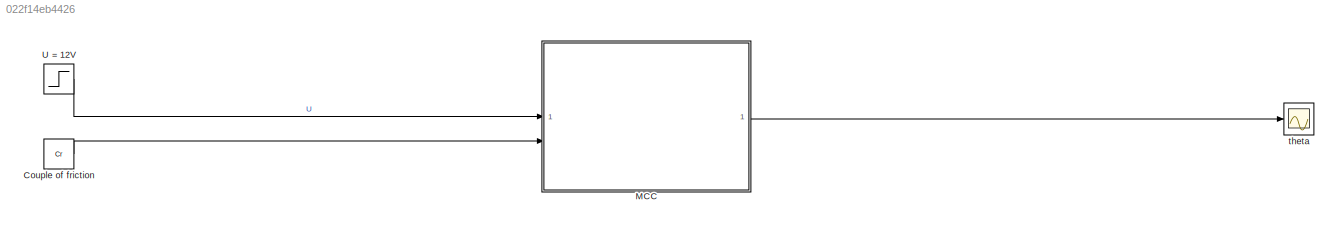
MODEL mdl_022f14eb4426
KIND model
CONFIG AbsTol = auto
CONFIG EnableMultiTasking = off
CONFIG FixedStep = auto
CONFIG MaxStep = auto
CONFIG MinStep = auto
CONFIG PreLoadFcn = J = 3.2284*10e-6;\nb = 3.5077*10e-6; \nC = 0;\nCr = 0;\nK = 0.0274;\nKe = 0.0274;\nKt = 0.0274;\nR = 4;\nL = 2.75*10e-6;\nU = 0;\nE = 0;\ntheta = 0;
CONFIG RelTol = 1e-3
CONFIG SampleTimeConstraint = Unconstrained
CONFIG SolverName = ode15s
CONFIG StartTime = 0.0
CONFIG StopTime = 2
BLOCK [Constant] Couple of friction
  Value = Cr
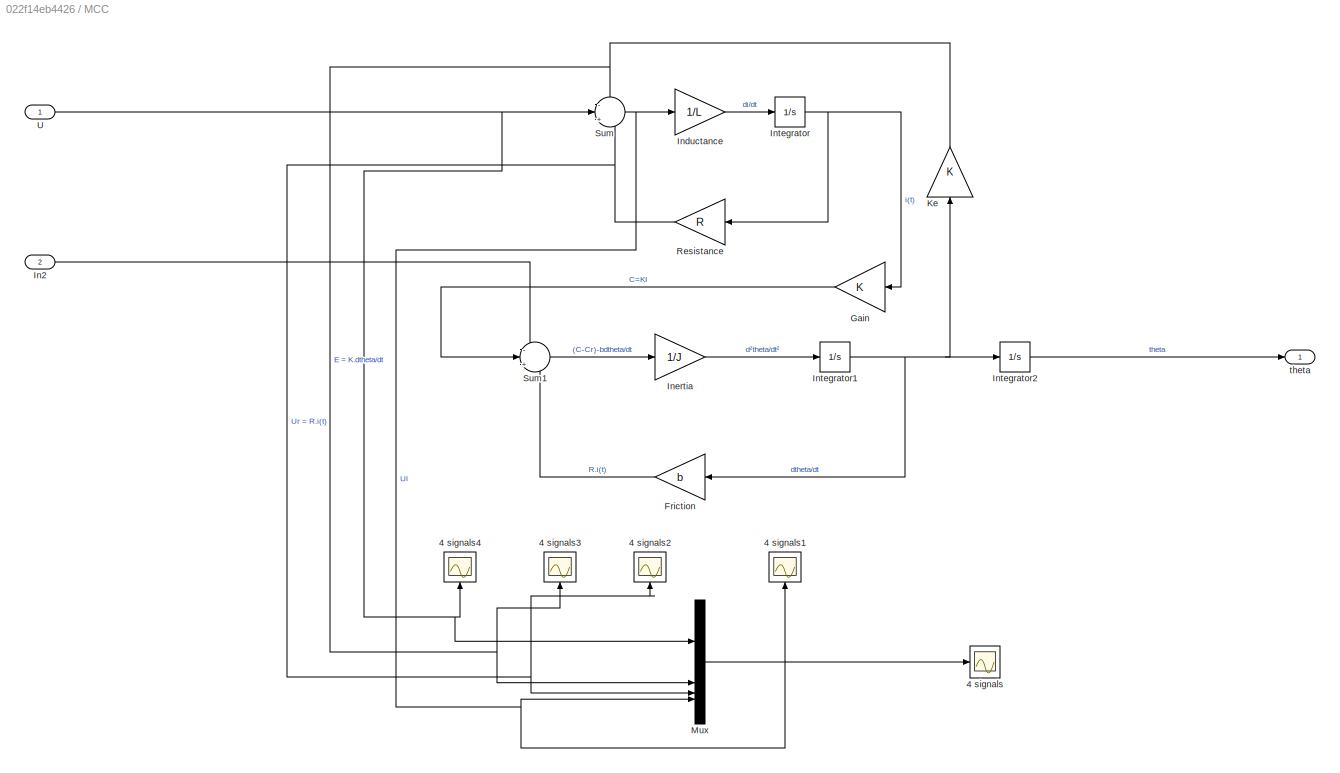
BLOCK [SubSystem] MCC
BLOCK [Scope] MCC/4 signals
  Floating = off
  NumInputPorts = 1
  ScopeSpecificationString = Simulink.scopes.TimeScopeBlockCfg('CurrentConfiguration', extmgr.ConfigurationSet(extmgr.Configuration('Core','General UI',true),extmgr.Configuration('Core','Source UI',true),extmgr.Configuration('Sources','WiredSimulink',true,'DataLoggingVariableName','ScopeData2'),extmgr.Configuration('Visuals','Time Domain',true,'SerializedDisplays',{struct('MinYLimReal','-1.50131','MaxYLimReal','13.50015','YLa...<+1430ch>
BLOCK [Scope] MCC/4 signals1
  Floating = off
  NameLocation = right
  NumInputPorts = 1
  ScopeSpecificationString = Simulink.scopes.TimeScopeBlockCfg('CurrentConfiguration', extmgr.ConfigurationSet(extmgr.Configuration('Core','General UI',true),extmgr.Configuration('Core','Source UI',true),extmgr.Configuration('Sources','WiredSimulink',true,'DataLoggingVariableName','ScopeData1'),extmgr.Configuration('Visuals','Time Domain',true,'SerializedDisplays',{struct('MinYLimReal','-1.50131','MaxYLimReal','13.50015','YLa...<+1394ch>
BLOCK [Scope] MCC/4 signals2
  Floating = off
  NameLocation = right
  NumInputPorts = 1
  ScopeSpecificationString = Simulink.scopes.TimeScopeBlockCfg('CurrentConfiguration', extmgr.ConfigurationSet(extmgr.Configuration('Core','General UI',true),extmgr.Configuration('Core','Source UI',true),extmgr.Configuration('Sources','WiredSimulink',true,'DataLoggingVariableName','ScopeData2'),extmgr.Configuration('Visuals','Time Domain',true,'SerializedDisplays',{struct('MinYLimReal','-1.49948','MaxYLimReal','13.49535','YLa...<+1403ch>
BLOCK [Scope] MCC/4 signals3
  Floating = off
  NameLocation = right
  NumInputPorts = 1
  ScopeSpecificationString = Simulink.scopes.TimeScopeBlockCfg('CurrentConfiguration', extmgr.ConfigurationSet(extmgr.Configuration('Core','General UI',true),extmgr.Configuration('Core','Source UI',true),extmgr.Configuration('Sources','WiredSimulink',true,'DataLoggingVariableName','ScopeData3'),extmgr.Configuration('Visuals','Time Domain',true,'SerializedDisplays',{struct('MinYLimReal','-1.26381','MaxYLimReal','11.37427','YLa...<+1694ch>
BLOCK [Scope] MCC/4 signals4
  Floating = off
  NameLocation = right
  NumInputPorts = 1
  ScopeSpecificationString = Simulink.scopes.TimeScopeBlockCfg('CurrentConfiguration', extmgr.ConfigurationSet(extmgr.Configuration('Core','General UI',true),extmgr.Configuration('Core','Source UI',true),extmgr.Configuration('Sources','WiredSimulink',true,'DataLoggingVariableName','ScopeData4'),extmgr.Configuration('Visuals','Time Domain',true,'SerializedDisplays',{struct('MinYLimReal','2.00000','MaxYLimReal','22.00000','YLab...<+1391ch>
BLOCK [Gain] MCC/Friction
  Gain = b
  NameLocation = top
BLOCK [Gain] MCC/Gain
  Gain = K
  NameLocation = top
BLOCK [Inport] MCC/In2
  Port = 2
BLOCK [Gain] MCC/Inductance
  Gain = 1/L
BLOCK [Gain] MCC/Inertia
  Gain = 1/J
BLOCK [Integrator] MCC/Integrator
BLOCK [Integrator] MCC/Integrator1
BLOCK [Integrator] MCC/Integrator2
BLOCK [Gain] MCC/Ke
  Gain = K
  NameLocation = right
BLOCK [Mux] MCC/Mux
  DisplayOption = bar
BLOCK [Gain] MCC/Resistance
  Gain = R
  NameLocation = top
BLOCK [Sum] MCC/Sum
  Inputs = -|+|-
BLOCK [Sum] MCC/Sum1
  Inputs = -|+|-
BLOCK [Inport] MCC/U
BLOCK [Outport] MCC/theta
BLOCK [Step] U = 12V
  After = 12
  SampleTime = 0
  Time = 0
BLOCK [Scope] theta
  Floating = off
  NumInputPorts = 1
  ScopeSpecificationString = Simulink.scopes.TimeScopeBlockCfg('CurrentConfiguration', extmgr.ConfigurationSet(extmgr.Configuration('Core','General UI',true),extmgr.Configuration('Core','Source UI',true),extmgr.Configuration('Sources','WiredSimulink',true),extmgr.Configuration('Visuals','Time Domain',true,'SerializedDisplays',{struct('MinYLimReal','-85.56459','MaxYLimReal','770.08127','YLabelReal','','MinYLimMag','0.00000','M...<+1364ch>
LINE Couple of friction:1 -> MCC:2
LINE MCC/Friction:1 -> MCC/Sum1:3
LINE MCC/Gain:1 -> MCC/Sum1:2
LINE MCC/In2:1 -> MCC/Sum1:1
LINE MCC/Inductance:1 -> MCC/Integrator:1
LINE MCC/Inertia:1 -> MCC/Integrator1:1
NET MCC/Integrator1:1 -> MCC/Friction:1, MCC/Integrator2:1, MCC/Ke:1
LINE MCC/Integrator2:1 -> MCC/theta:1
NET MCC/Integrator:1 -> MCC/Gain:1, MCC/Resistance:1
NET MCC/Ke:1 -> MCC/4 signals3:1, MCC/Mux:2, MCC/Sum:1
LINE MCC/Mux:1 -> MCC/4 signals:1
NET MCC/Resistance:1 -> MCC/4 signals2:1, MCC/Mux:3, MCC/Sum:3
LINE MCC/Sum1:1 -> MCC/Inertia:1
NET MCC/Sum:1 -> MCC/4 signals1:1, MCC/Inductance:1, MCC/Mux:4
NET MCC/U:1 -> MCC/4 signals4:1, MCC/Mux:1, MCC/Sum:2
LINE MCC:1 -> theta:1
LINE U = 12V:1 -> MCC:1
note: NET lines group one-source signal fan-out (src -> all destinations, sorted); 1:1 wires keep LINE
